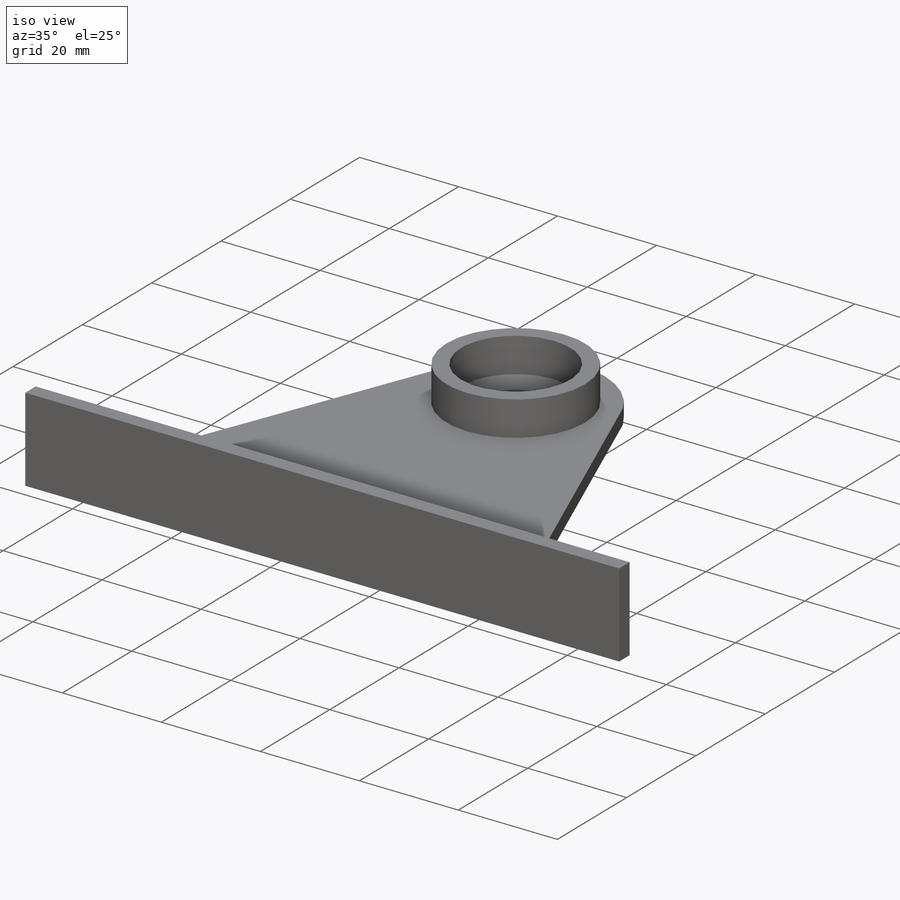
[diagram: iso view]
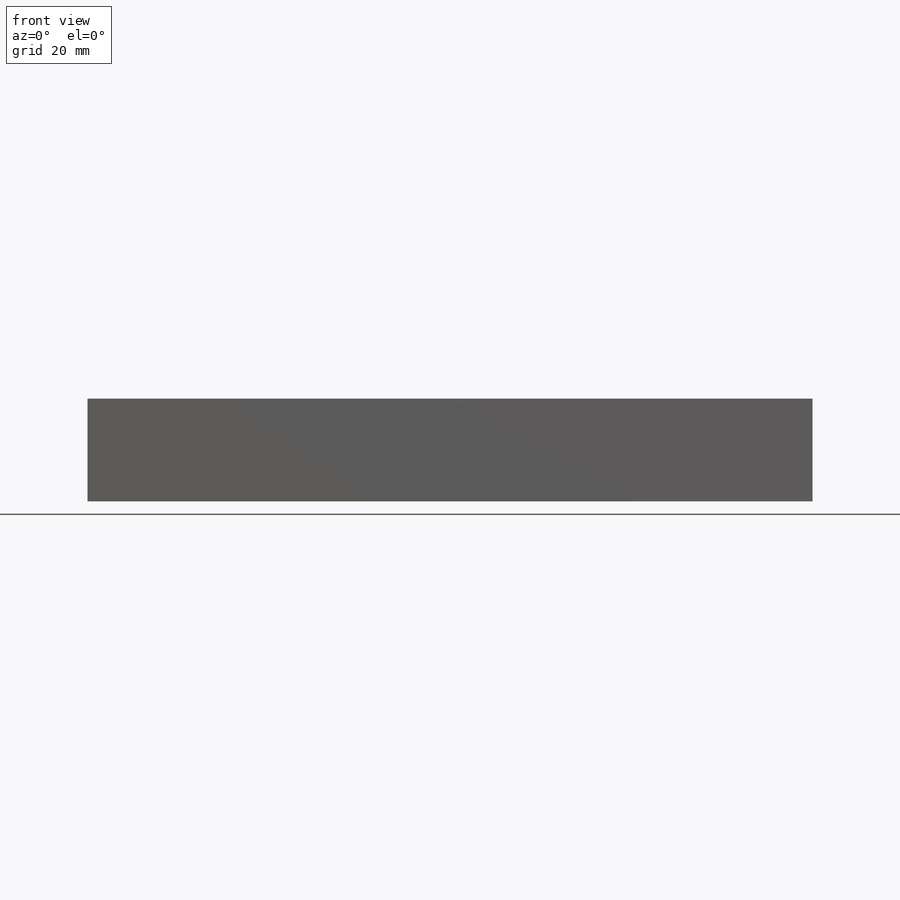
[diagram: front view]
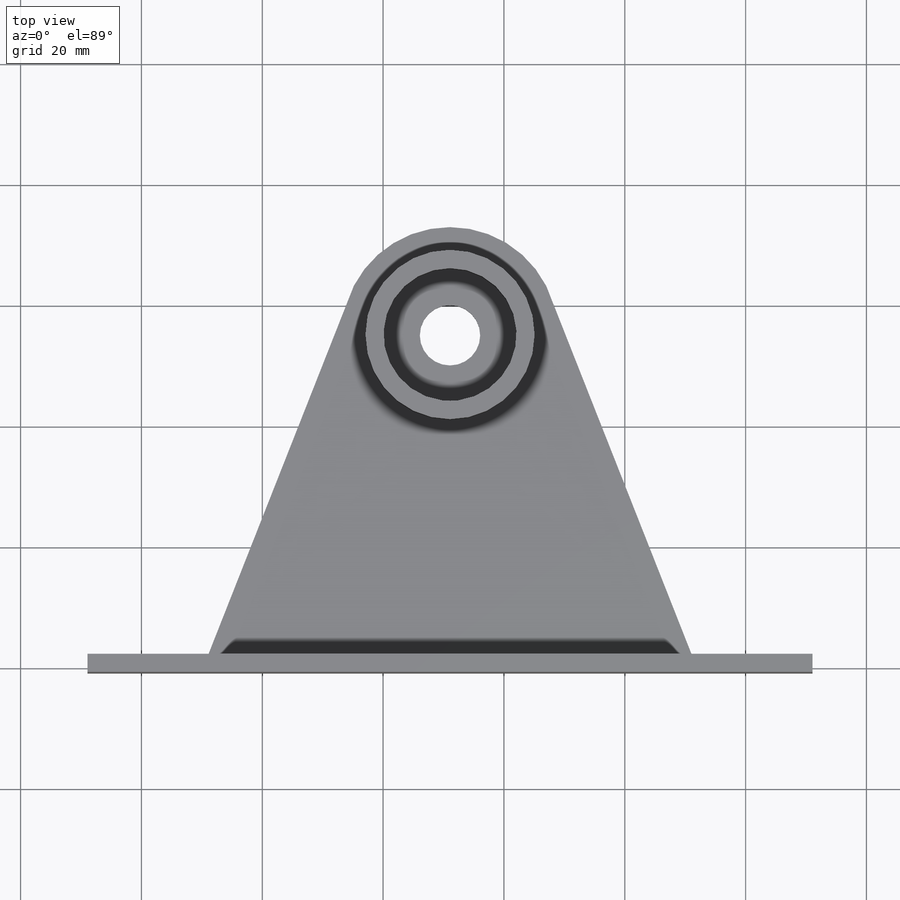
[diagram: top view]
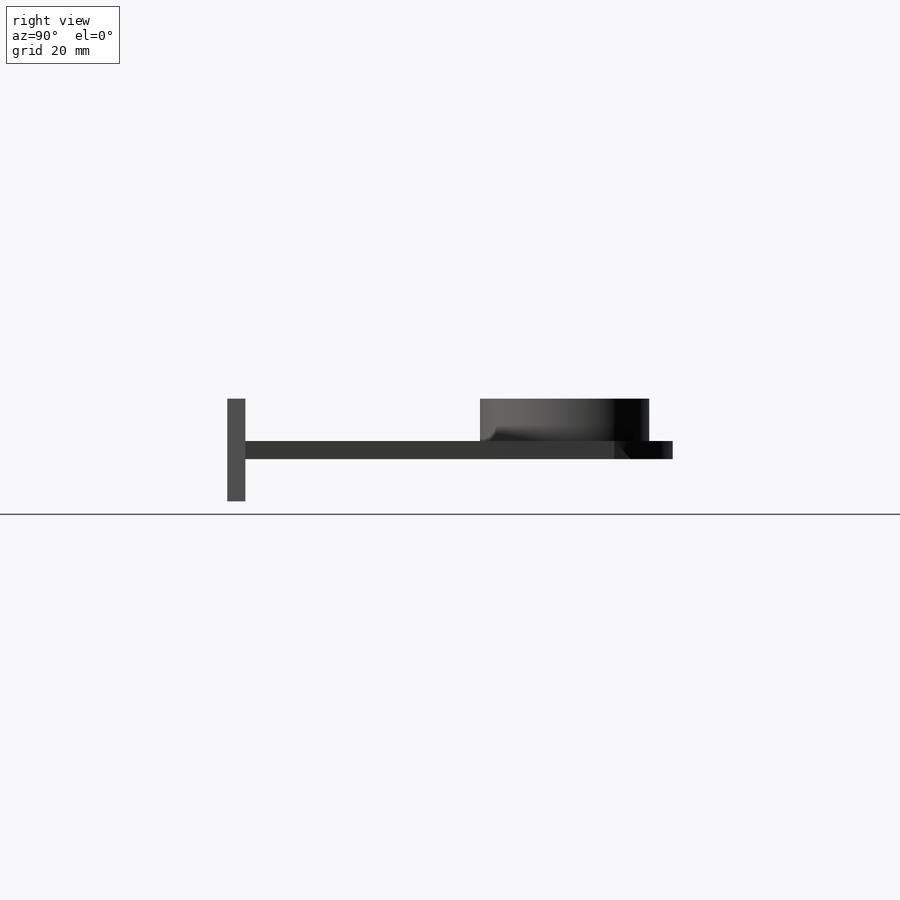
[diagram: right view]
SOLIDWORKS PART (.sldprt)
format: sldprt  version: not decoded by parser v0  size: 171,520 bytes
history: native  units: mm
features: sketch x5, extrude x3, material x1, cut_extrude x1 (+13 scaffold rows collapsed)
feature tree (23):
  scaffold x13  (default folders/planes/origin — collapsed)
  material  "Material <not specified>"
  sketch  "Sketch1"  dims[c1.D2=10.0mm c1.D3=22.0mm c1.D1=70.0mm c1.D4=52.84mm c2.D1=80.0mm]
  extrude  "Boss-Extrude1"  Depth=3mm
  sketch  "Sketch2"  dims[D1=28.0mm D2=22.0mm]
  extrude  "Boss-Extrude2"  Depth=7mm
  sketch  "Sketch3"  dims[c1.D1=7.0mm c1.D2=17.0mm c2.D1=130.0mm c2.D3=25.0mm]
  extrude  "Boss-Extrude3"  Depth=3mm
  sketch  "Sketch4"  dims[D2=~5.145252mm D1=3.5mm]
  sketch  "Sketch5"  dims[D1=10.0mm]
  cut_extrude  "Cut-Extrude1"  Depth=10mm
decode coverage: 9 of 9 modeling features carry decoded parameters
note: ~ marks probable driven/reference dimensions
note: suppression state not decoded; provenance and decode notes live in map.json
